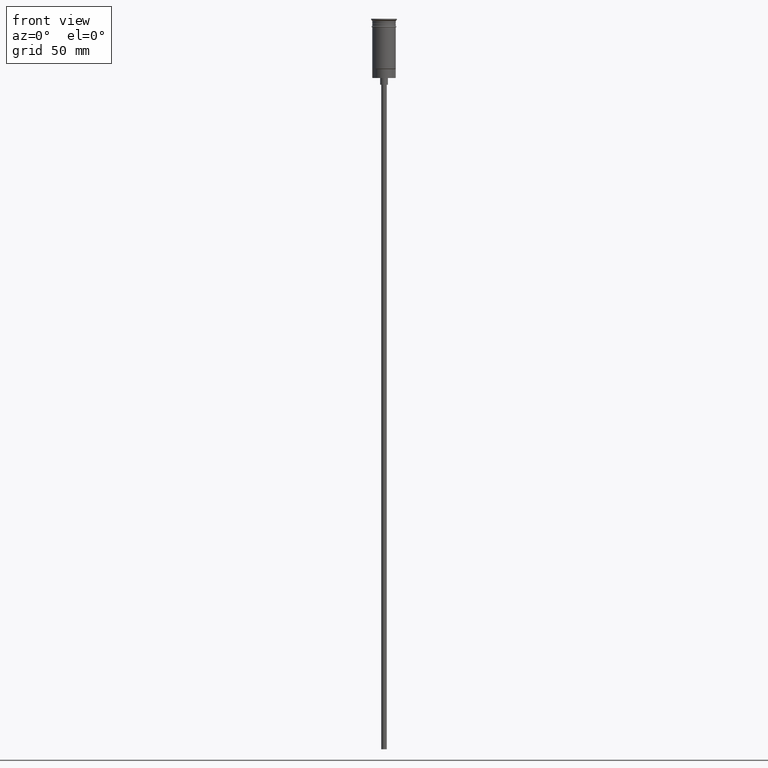
[diagram: clean part render]
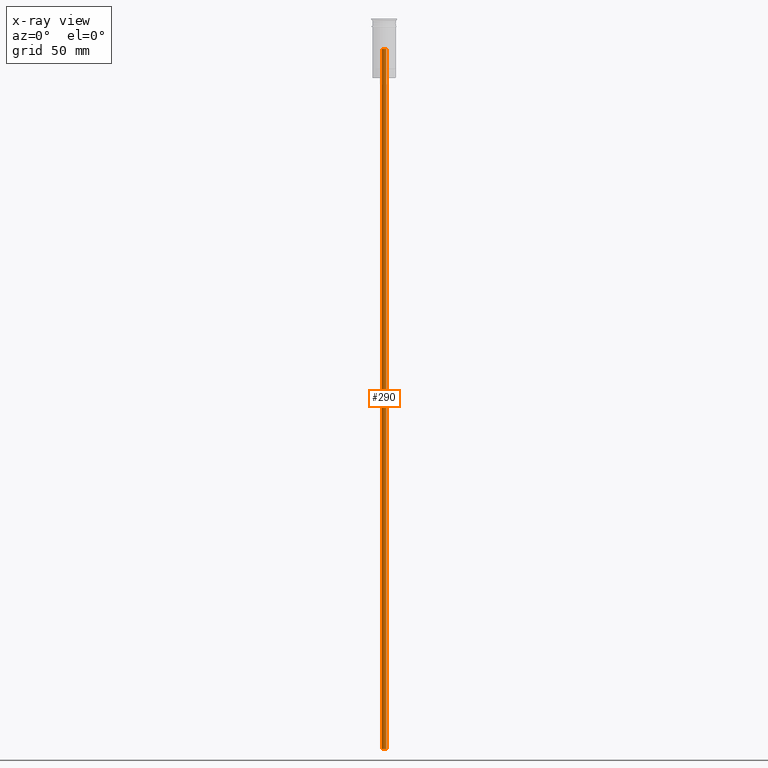
[diagram: x-ray — body ghosted, one internal face saturated and labeled with its STEP entity id]
A machine part, front view, then the same camera in x-ray: the body is ghosted and one INTERNAL B-rep face — a face not visible from any outside direction — is saturated and labeled: STEP entity #290.
In plain terms, the highlighted cylindrical surface (edge-blend (fillet) strip) has radius 1 mm, axis along (-0, -0, -1).
Its self-contained STEP definition (entity closure, byte-faithful):
#32 = DIRECTION ( 'NONE',  ( -0.000000000000000000, -0.000000000000000000, -1.000000000000000000 ) ) ;
#111 = FACE_OUTER_BOUND ( 'NONE', #882, .T. ) ;
#184 = VERTEX_POINT ( 'NONE', #1078 ) ;
#290 = ADVANCED_FACE ( 'NONE', ( #111 ), #1150, .F. ) ;
#297 = AXIS2_PLACEMENT_3D ( 'NONE', #1297, #1027, #1225 ) ;
#403 = DIRECTION ( 'NONE',  ( -1.000000000000000000, 0.000000000000000000, 0.000000000000000000 ) ) ;
#413 = ORIENTED_EDGE ( 'NONE', *, *, #806, .F. ) ;
#466 = LINE ( 'NONE', #1179, #1247 ) ;
#514 = ORIENTED_EDGE ( 'NONE', *, *, #1356, .F. ) ;
#521 = CARTESIAN_POINT ( 'NONE',  ( -1.000000000000000000, 0.000000000000000000, -326.5000000000000000 ) ) ;
#586 = VERTEX_POINT ( 'NONE', #1531 ) ;
#595 = CIRCLE ( 'NONE', #1336, 1.000000000000000000 ) ;
#607 = ORIENTED_EDGE ( 'NONE', *, *, #1239, .T. ) ;
#621 = DIRECTION ( 'NONE',  ( -0.000000000000000000, -3.730588120380232914E-16, -1.000000000000000000 ) ) ;
#726 = CARTESIAN_POINT ( 'NONE',  ( 0.000000000000000000, 0.000000000000000000, -13.49999999999999822 ) ) ;
#806 = EDGE_CURVE ( 'NONE', #184, #1062, #466, .T. ) ;
#807 = EDGE_CURVE ( 'NONE', #586, #1178, #1430, .T. ) ;
#882 = EDGE_LOOP ( 'NONE', ( #514, #1229, #607, #413 ) ) ;
#887 = DIRECTION ( 'NONE',  ( -0.000000000000000000, -0.000000000000000000, -1.000000000000000000 ) ) ;
#902 = CARTESIAN_POINT ( 'NONE',  ( 0.000000000000000000, 0.000000000000000000, -10.67157287525383147 ) ) ;
#1009 = CIRCLE ( 'NONE', #297, 1.000000000000000000 ) ;
#1027 = DIRECTION ( 'NONE',  ( 0.000000000000000000, 0.000000000000000000, -1.000000000000000000 ) ) ;
#1037 = CARTESIAN_POINT ( 'NONE',  ( 1.000000000000000000, 1.224646799147353207E-16, -326.5000000000000000 ) ) ;
#1056 = DIRECTION ( 'NONE',  ( -0.000000000000000000, -0.000000000000000000, -1.000000000000000000 ) ) ;
#1062 = VERTEX_POINT ( 'NONE', #521 ) ;
#1078 = CARTESIAN_POINT ( 'NONE',  ( -1.000000000000000000, 0.000000000000000000, -13.49999999999999822 ) ) ;
#1150 = CYLINDRICAL_SURFACE ( 'NONE', #1156, 1.000000000000000000 ) ;
#1156 = AXIS2_PLACEMENT_3D ( 'NONE', #902, #32, #403 ) ;
#1178 = VERTEX_POINT ( 'NONE', #1037 ) ;
#1179 = CARTESIAN_POINT ( 'NONE',  ( -1.000000000000000000, 0.000000000000000000, -10.67157287525383147 ) ) ;
#1225 = DIRECTION ( 'NONE',  ( -1.000000000000000000, 0.000000000000000000, 0.000000000000000000 ) ) ;
#1229 = ORIENTED_EDGE ( 'NONE', *, *, #807, .T. ) ;
#1239 = EDGE_CURVE ( 'NONE', #1178, #1062, #1009, .T. ) ;
#1247 = VECTOR ( 'NONE', #1056, 1000.000000000000000 ) ;
#1249 = DIRECTION ( 'NONE',  ( 0.000000000000000000, -1.000000000000000000, 0.000000000000000000 ) ) ;
#1297 = CARTESIAN_POINT ( 'NONE',  ( 0.000000000000000000, 0.000000000000000000, -326.5000000000000000 ) ) ;
#1336 = AXIS2_PLACEMENT_3D ( 'NONE', #726, #621, #1249 ) ;
#1356 = EDGE_CURVE ( 'NONE', #586, #184, #595, .T. ) ;
#1430 = LINE ( 'NONE', #1504, #1465 ) ;
#1465 = VECTOR ( 'NONE', #887, 1000.000000000000000 ) ;
#1504 = CARTESIAN_POINT ( 'NONE',  ( 1.000000000000000000, 1.224646799147353207E-16, -10.67157287525383147 ) ) ;
#1531 = CARTESIAN_POINT ( 'NONE',  ( 1.000000000000000000, 1.224646799147353207E-16, -13.49999999999999822 ) ) ;